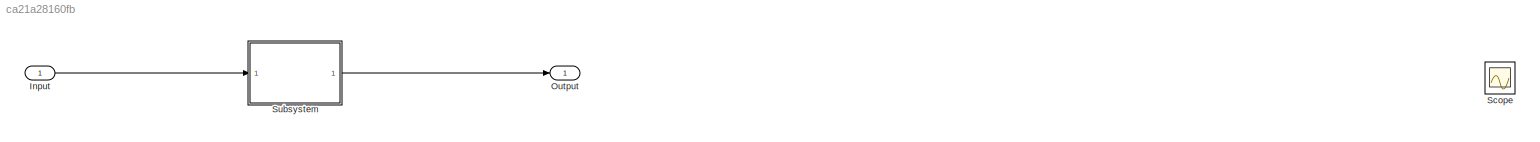
MODEL slx_ca21a28160fb
KIND model
CONFIG AbsTol = auto
CONFIG EnableMultiTasking = on
CONFIG FixedStep = Ts
CONFIG InitFcn = seed = randi(10000);
CONFIG MaxStep = auto
CONFIG MinStep = auto
CONFIG RelTol = 1e-3
CONFIG SampleTimeConstraint = Unconstrained
CONFIG SolverName = FixedStepAuto
CONFIG StartFcn = seed = randi(10000);
CONFIG StartTime = 0.0
CONFIG StopTime = T
BLOCK [Inport] Input
BLOCK [Outport] Output
BLOCK [Scope] Scope
  Floating = off
  IOType = viewer
  NumInputPorts = 1
  Ports = []
  ScopeSpecificationString = Simulink.scopes.TimeScopeBlockCfg('CurrentConfiguration', extmgr.ConfigurationSet(extmgr.Configuration('Core','General UI',true),extmgr.Configuration('Core','Source UI',true),extmgr.Configuration('Sources','WiredSimulink',true),extmgr.Configuration('Visuals','Time Domain',true,'SerializedDisplays',{struct('MinYLimReal','1.64702','MaxYLimReal','21.18944','YLabelReal','','MinYLimMag','0.00000','MaxY...<+2648ch>
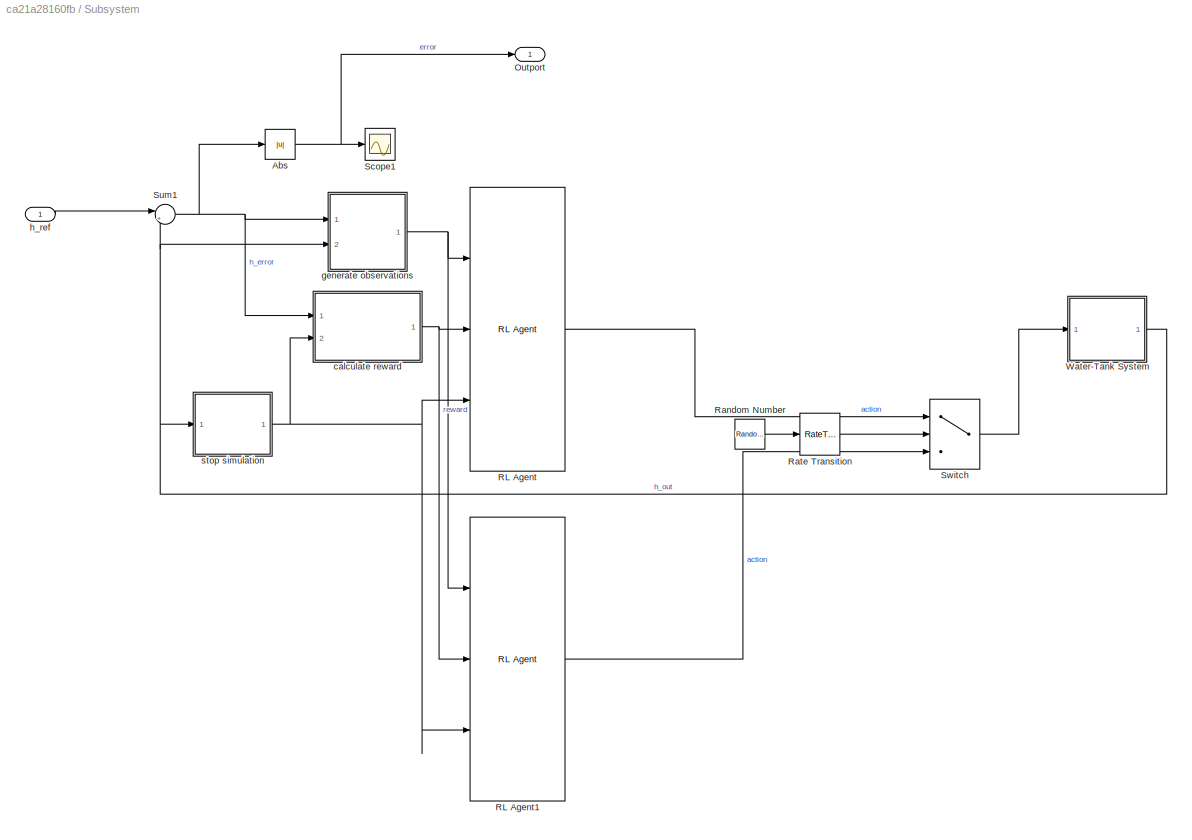
BLOCK [SubSystem] Subsystem
  Ports = [1, 1]
  RequestExecContextInheritance = off
BLOCK [Abs] Subsystem/Abs
  SaturateOnIntegerOverflow = off
BLOCK [Outport] Subsystem/Outport
BLOCK [Reference] Subsystem/RL Agent  REF=rllib/RL Agent
  Ports = [3, 1]
  SourceBlock = rllib/RL Agent
  SourceProductBaseCode = RL
  SourceType = RL Agent
BLOCK [Reference] Subsystem/RL Agent1  REF=rllib/RL Agent
  Ports = [3, 1]
  SourceBlock = rllib/RL Agent
  SourceProductBaseCode = RL
  SourceType = RL Agent
BLOCK [RandomNumber] Subsystem/Random Number
  SampleTime = 1
  Seed = seed
BLOCK [RateTransition] Subsystem/Rate Transition
  OutPortSampleTime = Ts
BLOCK [Scope] Subsystem/Scope1
  Floating = off
  NumInputPorts = 1
  Ports = [1]
  ScopeSpecificationString = Simulink.scopes.TimeScopeBlockCfg('CurrentConfiguration', extmgr.ConfigurationSet(extmgr.Configuration('Core','General UI',true),extmgr.Configuration('Core','Source UI',true),extmgr.Configuration('Sources','WiredSimulink',true,'DataLoggingVariableName','ScopeData1'),extmgr.Configuration('Visuals','Time Domain',true),extmgr.Configuration('Tools','Plot Navigation',true),extmgr.Configuration('Tools',...<+40ch>
BLOCK [Sum] Subsystem/Sum1
  Inputs = |+-
  Ports = [2, 1]
  SaturateOnIntegerOverflow = on
BLOCK [Switch] Subsystem/Switch
  Criteria = u2 > Threshold
  InputSameDT = off
  SaturateOnIntegerOverflow = off
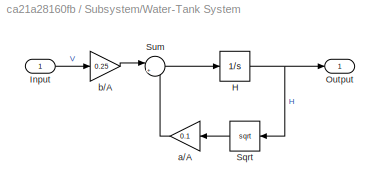
BLOCK [SubSystem] Subsystem/Water-Tank System
  Ports = [1, 1]
  RequestExecContextInheritance = off
BLOCK [Integrator] Subsystem/Water-Tank System/H
  InitialCondition = 3
  LimitOutput = on
  LowerSaturationLimit = 0
  Ports = [1, 1]
BLOCK [Inport] Subsystem/Water-Tank System/Input
BLOCK [Outport] Subsystem/Water-Tank System/Output
  VectorParamsAs1DForOutWhenUnconnected = off
BLOCK [Sqrt] Subsystem/Water-Tank System/Sqrt
  NameLocation = top
  OutputSignalType = real
BLOCK [Sum] Subsystem/Water-Tank System/Sum
  Inputs = |+-
  Ports = [2, 1]
  SaturateOnIntegerOverflow = on
BLOCK [Gain] Subsystem/Water-Tank System/a//A
  Gain = 0.1
  OutDataTypeStr = Inherit: Same as input
  ParamDataTypeStr = Inherit: Same as input
  SaturateOnIntegerOverflow = on
BLOCK [Gain] Subsystem/Water-Tank System/b//A
  Gain = 0.25
  OutDataTypeStr = Inherit: Same as input
  ParamDataTypeStr = Inherit: Same as input
  SaturateOnIntegerOverflow = on
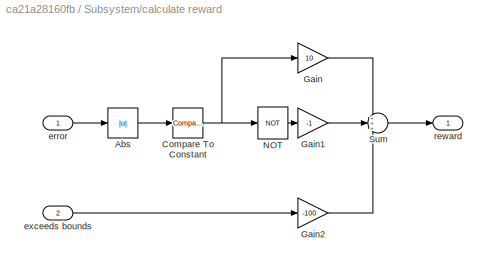
BLOCK [SubSystem] Subsystem/calculate reward
  Ports = [2, 1]
  RequestExecContextInheritance = off
BLOCK [Abs] Subsystem/calculate reward/Abs
  SaturateOnIntegerOverflow = off
BLOCK [Reference] Subsystem/calculate reward/Compare To Constant  REF=simulink/Logic and Bit
Operations/Compare
To Constant
  Ports = [1, 1]
  SourceBlock = simulink/Logic and Bit\nOperations/Compare\nTo Constant
  SourceProductBaseCode = SL
  SourceType = Compare To Constant
BLOCK [Gain] Subsystem/calculate reward/Gain
  Gain = 10
BLOCK [Gain] Subsystem/calculate reward/Gain1
  Gain = -1
BLOCK [Gain] Subsystem/calculate reward/Gain2
  Gain = -100
BLOCK [Logic] Subsystem/calculate reward/NOT
  AllPortsSameDT = off
  IconShape = distinctive
  Operator = NOT
  OutDataTypeStr = boolean
  Ports = [1, 1]
BLOCK [Sum] Subsystem/calculate reward/Sum
  Inputs = +++
  OutDataTypeStr = double
  Ports = [3, 1]
BLOCK [Inport] Subsystem/calculate reward/error
BLOCK [Inport] Subsystem/calculate reward/exceeds bounds
  Port = 2
BLOCK [Outport] Subsystem/calculate reward/reward
  VectorParamsAs1DForOutWhenUnconnected = off
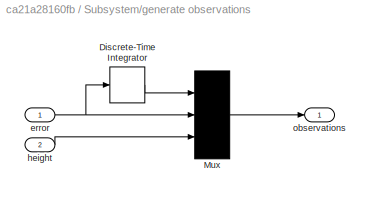
BLOCK [SubSystem] Subsystem/generate observations
  Ports = [2, 1]
  RequestExecContextInheritance = off
BLOCK [DiscreteIntegrator] Subsystem/generate observations/Discrete-Time Integrator
  ICPrevOutput = DiscIntNeverNeededParam
  ICPrevScaledInput = DiscIntNeverNeededParam
  InitialConditionSetting = Auto
  Ports = [1, 1]
  SampleTime = Ts
BLOCK [Mux] Subsystem/generate observations/Mux
  DisplayOption = bar
  Inputs = 3
  Ports = [3, 1]
BLOCK [Inport] Subsystem/generate observations/error
BLOCK [Inport] Subsystem/generate observations/height
  Port = 2
BLOCK [Outport] Subsystem/generate observations/observations
  VectorParamsAs1DForOutWhenUnconnected = off
BLOCK [Inport] Subsystem/h_ref
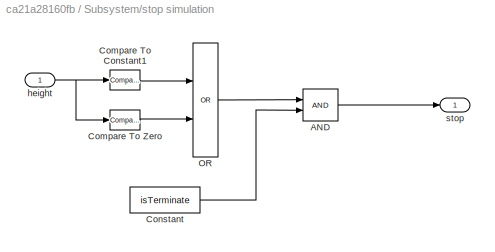
BLOCK [SubSystem] Subsystem/stop simulation
  Ports = [1, 1]
  RequestExecContextInheritance = off
BLOCK [Logic] Subsystem/stop simulation/AND
  AllPortsSameDT = off
  IconShape = distinctive
  OutDataTypeStr = boolean
  Ports = [2, 1]
BLOCK [Reference] Subsystem/stop simulation/Compare To Constant1  REF=simulink/Logic and Bit
Operations/Compare
To Constant
  Ports = [1, 1]
  SourceBlock = simulink/Logic and Bit\nOperations/Compare\nTo Constant
  SourceProductBaseCode = SL
  SourceType = Compare To Constant
BLOCK [Reference] Subsystem/stop simulation/Compare To Zero  REF=simulink/Logic and Bit
Operations/Compare
To Zero
  Ports = [1, 1]
  SourceBlock = simulink/Logic and Bit\nOperations/Compare\nTo Zero
  SourceProductBaseCode = SL
  SourceType = Compare To Zero
BLOCK [Constant] Subsystem/stop simulation/Constant
  Value = isTerminate
BLOCK [Logic] Subsystem/stop simulation/OR
  AllPortsSameDT = off
  IconShape = distinctive
  Operator = OR
  OutDataTypeStr = boolean
  Ports = [2, 1]
BLOCK [Inport] Subsystem/stop simulation/height
BLOCK [Outport] Subsystem/stop simulation/stop
  VectorParamsAs1DForOutWhenUnconnected = off
LINE Input:1 -> Subsystem:1
NET Subsystem/Abs:1 -> Subsystem/Outport:1, Subsystem/Scope1:1
LINE Subsystem/RL Agent1:1 -> Subsystem/Switch:3
LINE Subsystem/RL Agent:1 -> Subsystem/Switch:1
LINE Subsystem/Random Number:1 -> Subsystem/Rate Transition:1
LINE Subsystem/Rate Transition:1 -> Subsystem/Switch:2
NET Subsystem/Sum1:1 -> Subsystem/Abs:1, Subsystem/calculate reward:1, Subsystem/generate observations:1
LINE Subsystem/Switch:1 -> Subsystem/Water-Tank System:1
NET Subsystem/Water-Tank System/H:1 -> Subsystem/Water-Tank System/Output:1, Subsystem/Water-Tank System/Sqrt:1
LINE Subsystem/Water-Tank System/Input:1 -> Subsystem/Water-Tank System/b//A:1
LINE Subsystem/Water-Tank System/Sqrt:1 -> Subsystem/Water-Tank System/a//A:1
LINE Subsystem/Water-Tank System/Sum:1 -> Subsystem/Water-Tank System/H:1
LINE Subsystem/Water-Tank System/a//A:1 -> Subsystem/Water-Tank System/Sum:2
LINE Subsystem/Water-Tank System/b//A:1 -> Subsystem/Water-Tank System/Sum:1
NET Subsystem/Water-Tank System:1 -> Subsystem/Sum1:2, Subsystem/generate observations:2, Subsystem/stop simulation:1
LINE Subsystem/calculate reward/Abs:1 -> Subsystem/calculate reward/Compare To Constant:1
NET Subsystem/calculate reward/Compare To Constant:1 -> Subsystem/calculate reward/Gain:1, Subsystem/calculate reward/NOT:1
LINE Subsystem/calculate reward/Gain1:1 -> Subsystem/calculate reward/Sum:2
LINE Subsystem/calculate reward/Gain2:1 -> Subsystem/calculate reward/Sum:3
LINE Subsystem/calculate reward/Gain:1 -> Subsystem/calculate reward/Sum:1
LINE Subsystem/calculate reward/NOT:1 -> Subsystem/calculate reward/Gain1:1
LINE Subsystem/calculate reward/Sum:1 -> Subsystem/calculate reward/reward:1
LINE Subsystem/calculate reward/error:1 -> Subsystem/calculate reward/Abs:1
LINE Subsystem/calculate reward/exceeds bounds:1 -> Subsystem/calculate reward/Gain2:1
NET Subsystem/calculate reward:1 -> Subsystem/RL Agent1:2, Subsystem/RL Agent:2
LINE Subsystem/generate observations/Discrete-Time Integrator:1 -> Subsystem/generate observations/Mux:1
LINE Subsystem/generate observations/Mux:1 -> Subsystem/generate observations/observations:1
NET Subsystem/generate observations/error:1 -> Subsystem/generate observations/Discrete-Time Integrator:1, Subsystem/generate observations/Mux:2
LINE Subsystem/generate observations/height:1 -> Subsystem/generate observations/Mux:3
NET Subsystem/generate observations:1 -> Subsystem/RL Agent1:1, Subsystem/RL Agent:1
LINE Subsystem/h_ref:1 -> Subsystem/Sum1:1
LINE Subsystem/stop simulation/AND:1 -> Subsystem/stop simulation/stop:1
LINE Subsystem/stop simulation/Compare To Constant1:1 -> Subsystem/stop simulation/OR:1
LINE Subsystem/stop simulation/Compare To Zero:1 -> Subsystem/stop simulation/OR:2
LINE Subsystem/stop simulation/Constant:1 -> Subsystem/stop simulation/AND:2
LINE Subsystem/stop simulation/OR:1 -> Subsystem/stop simulation/AND:1
NET Subsystem/stop simulation/height:1 -> Subsystem/stop simulation/Compare To Constant1:1, Subsystem/stop simulation/Compare To Zero:1
NET Subsystem/stop simulation:1 -> Subsystem/RL Agent1:3, Subsystem/RL Agent:3, Subsystem/calculate reward:2
LINE Subsystem:1 -> Output:1
note: NET lines group one-source signal fan-out (src -> all destinations, sorted); 1:1 wires keep LINE
